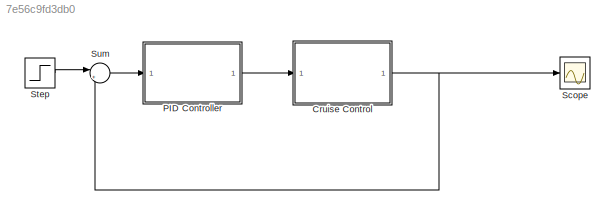
MODEL slx_7e56c9fd3db0
KIND model
CONFIG AbsTol = auto
CONFIG EnableMultiTasking = off
CONFIG FixedStep = auto
CONFIG MaxStep = auto
CONFIG MinStep = auto
CONFIG RelTol = 1e-3
CONFIG SampleTimeConstraint = Unconstrained
CONFIG SolverName = VariableStepAuto
CONFIG StartTime = 0.0
CONFIG StopTime = 120
WORKSPACE source: mxarray member
WORKSPACE b = 50
WORKSPACE kd = 300
WORKSPACE ki = 50
WORKSPACE kp = 350
WORKSPACE m = 1000
WORKSPACE meViews: object (value not decoded)
WORKSPACE u = 500
BLOCK [ModelReference] Cruise Control
  ModelNameDialog = Cruise_Control
  ModelReferenceVersion = 1.3
  Ports = [1, 1]
BLOCK [ModelReference] PID Controller
  ModelNameDialog = PID_Controller
  ModelReferenceVersion = 1.3
  Ports = [1, 1]
BLOCK [Scope] Scope
  Floating = off
  NumInputPorts = 1
  Ports = [1]
  ScopeSpecificationString = Simulink.scopes.TimeScopeBlockCfg('CurrentConfiguration', extmgr.ConfigurationSet(extmgr.Configuration('Core','General UI',true),extmgr.Configuration('Core','Source UI',true),extmgr.Configuration('Sources','WiredSimulink',true),extmgr.Configuration('Visuals','Time Domain',true,'SerializedDisplays',{struct('MinYLimReal','-70.5344','MaxYLimReal','634.8096','YLabelReal','','MinYLimMag','0.00000','Max...<+1367ch>
BLOCK [Step] Step
  After = u
  SampleTime = 0
BLOCK [Sum] Sum
  Inputs = |+-
  Ports = [2, 1]
NET Cruise Control:1 -> Scope:1, Sum:2
LINE PID Controller:1 -> Cruise Control:1
LINE Step:1 -> Sum:1
LINE Sum:1 -> PID Controller:1
note: NET lines group one-source signal fan-out (src -> all destinations, sorted); 1:1 wires keep LINE
